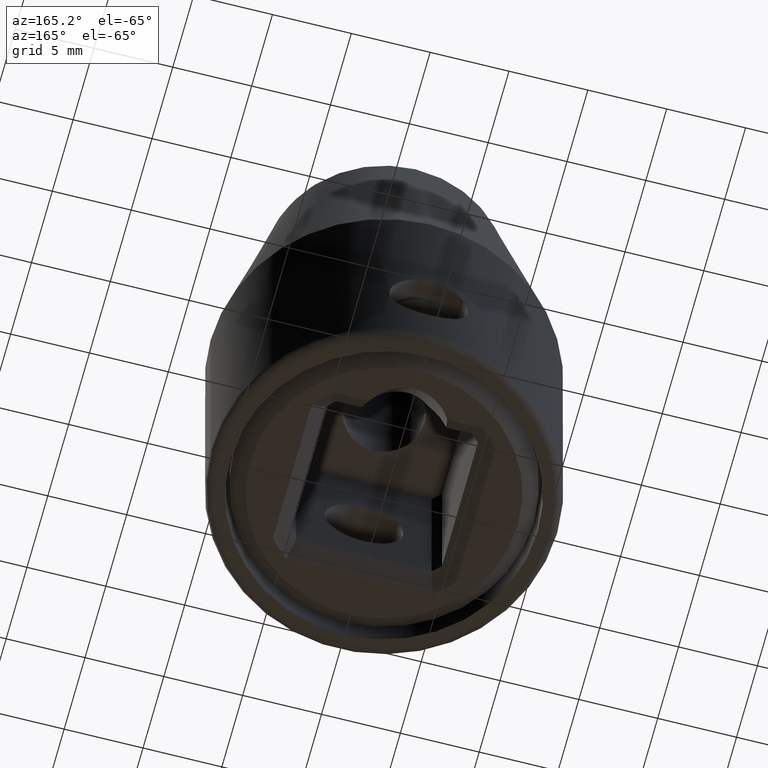
[diagram: clean part render]
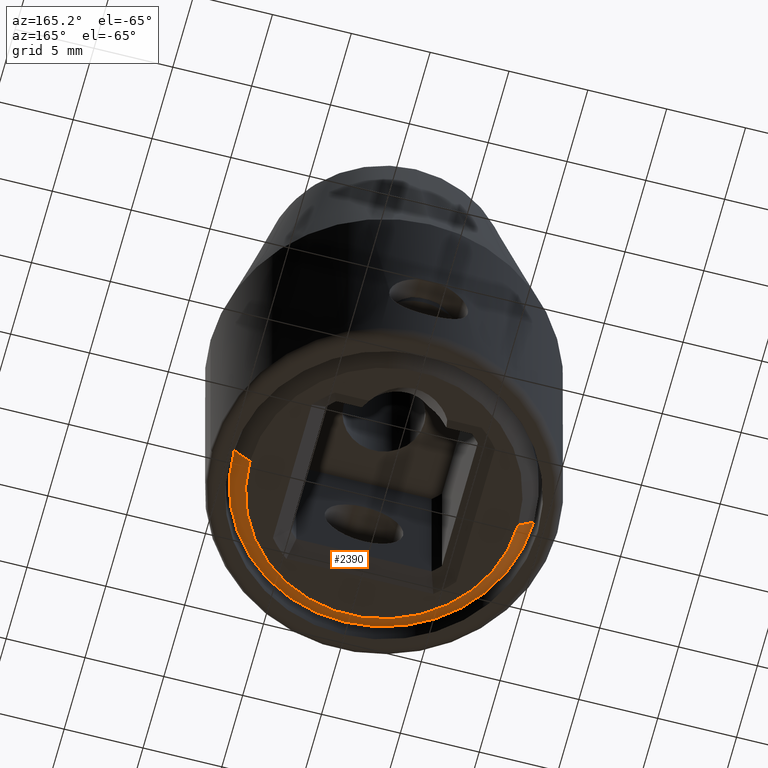
[diagram: same view with one face highlighted and labeled with its STEP entity id]
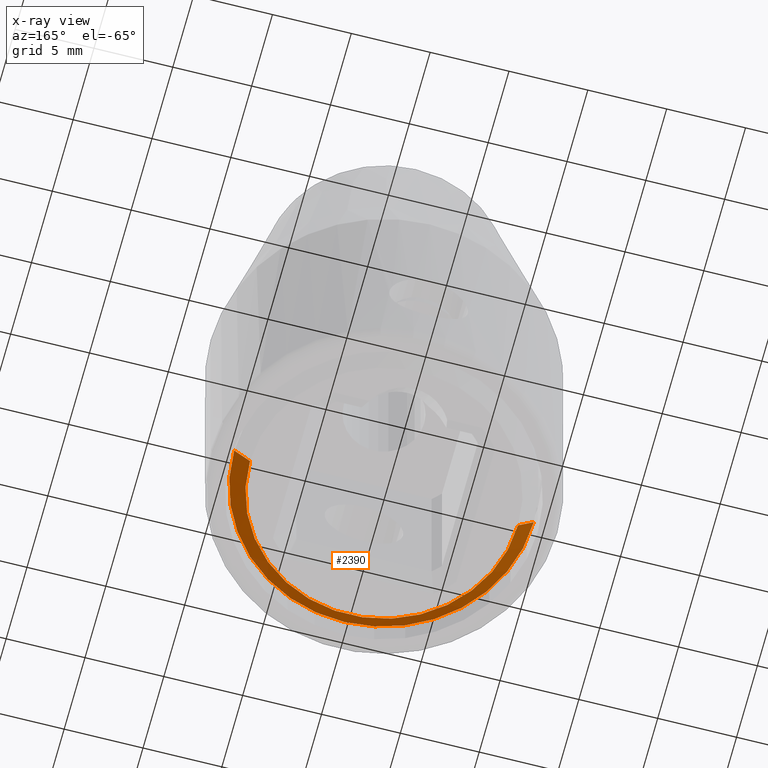
[diagram: x-ray of the same camera — body ghosted, the highlighted face saturated]
A machine part, auxiliary view. The second image highlights one B-rep face of the part: STEP entity #2390.
The next image is the same camera in x-ray: the body ghosted, the highlighted face saturated — about 0% of this face is hidden behind the body in this view.
In plain terms, the highlighted conical surface has half-angle 45 deg.
Its self-contained STEP definition (entity closure, byte-faithful):
#83=CARTESIAN_POINT('',(0.E0,0.E0,0.E0));
#84=DIRECTION('',(0.E0,0.E0,-1.E0));
#85=DIRECTION('',(1.E0,0.E0,0.E0));
#86=AXIS2_PLACEMENT_3D('',#83,#84,#85);
#307=CARTESIAN_POINT('',(0.E0,0.E0,1.E0));
#308=DIRECTION('',(0.E0,0.E0,-1.E0));
#309=DIRECTION('',(1.E0,0.E0,0.E0));
#310=AXIS2_PLACEMENT_3D('',#307,#308,#309);
#1107=DIRECTION('',(7.071067811865E-1,6.639837968287E-10,7.071067811865E-1));
#1108=VECTOR('',#1107,1.414213562378E0);
#1109=CARTESIAN_POINT('',(8.499999999977E0,-5.804829776206E-9,
-2.290079237355E-11));
#1110=LINE('',#1109,#1108);
#1111=DIRECTION('',(-7.071067811865E-1,-6.639848375795E-10,7.071067811865E-1));
#1112=VECTOR('',#1111,1.414213562378E0);
#1113=CARTESIAN_POINT('',(-8.499999999977E0,5.804831682860E-9,
-2.290197661144E-11));
#1114=LINE('',#1113,#1112);
#1167=CARTESIAN_POINT('',(8.5E0,0.E0,0.E0));
#1168=CARTESIAN_POINT('',(-8.5E0,0.E0,0.E0));
#1169=VERTEX_POINT('',#1167);
#1170=VERTEX_POINT('',#1168);
#1171=CARTESIAN_POINT('',(9.5E0,0.E0,1.E0));
#1172=CARTESIAN_POINT('',(-9.5E0,0.E0,1.E0));
#1173=VERTEX_POINT('',#1171);
#1174=VERTEX_POINT('',#1172);
#2377=CARTESIAN_POINT('',(0.E0,0.E0,4.999999999669E-1));
#2378=DIRECTION('',(0.E0,0.E0,1.E0));
#2379=DIRECTION('',(0.E0,-1.E0,0.E0));
#2380=AXIS2_PLACEMENT_3D('',#2377,#2378,#2379);
#2381=CONICAL_SURFACE('',#2380,8.999999999967E0,4.5E1);
#2382=ORIENTED_EDGE('',*,*,#1321,.T.);
#2384=ORIENTED_EDGE('',*,*,#2383,.T.);
#2385=ORIENTED_EDGE('',*,*,#1483,.F.);
#2387=ORIENTED_EDGE('',*,*,#2386,.F.);
#2388=EDGE_LOOP('',(#2382,#2384,#2385,#2387));
#2389=FACE_OUTER_BOUND('',#2388,.F.);
#2390=ADVANCED_FACE('',(#2389),#2381,.T.);
#87=CIRCLE('',#86,8.5E0);
#311=CIRCLE('',#310,9.5E0);
#1321=EDGE_CURVE('',#1169,#1170,#87,.T.);
#1483=EDGE_CURVE('',#1173,#1174,#311,.T.);
#2383=EDGE_CURVE('',#1170,#1174,#1114,.T.);
#2386=EDGE_CURVE('',#1169,#1173,#1110,.T.);